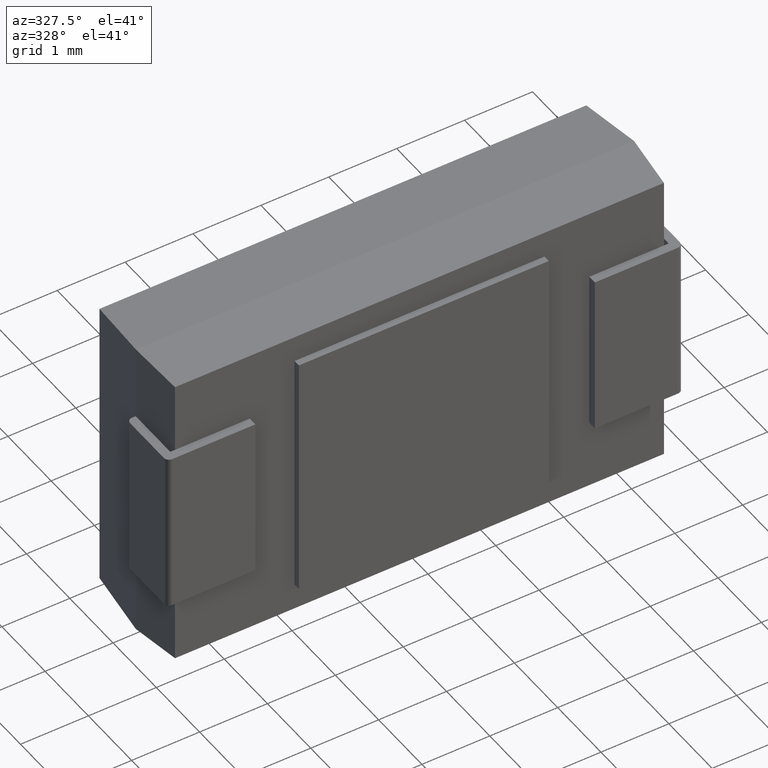
[diagram: clean part render]
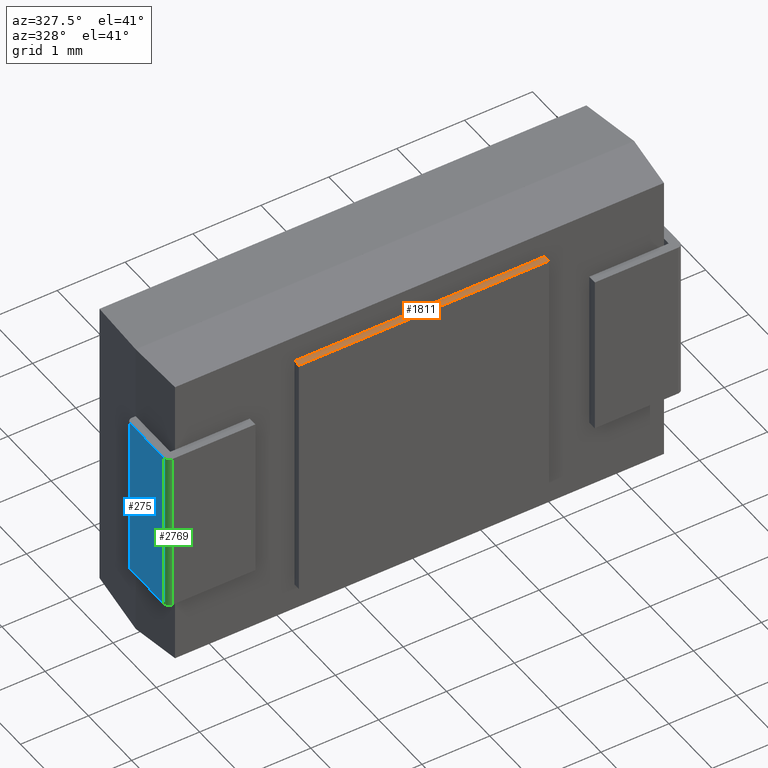
[diagram: same view with three faces highlighted in distinct colors, each labeled with its STEP entity id]
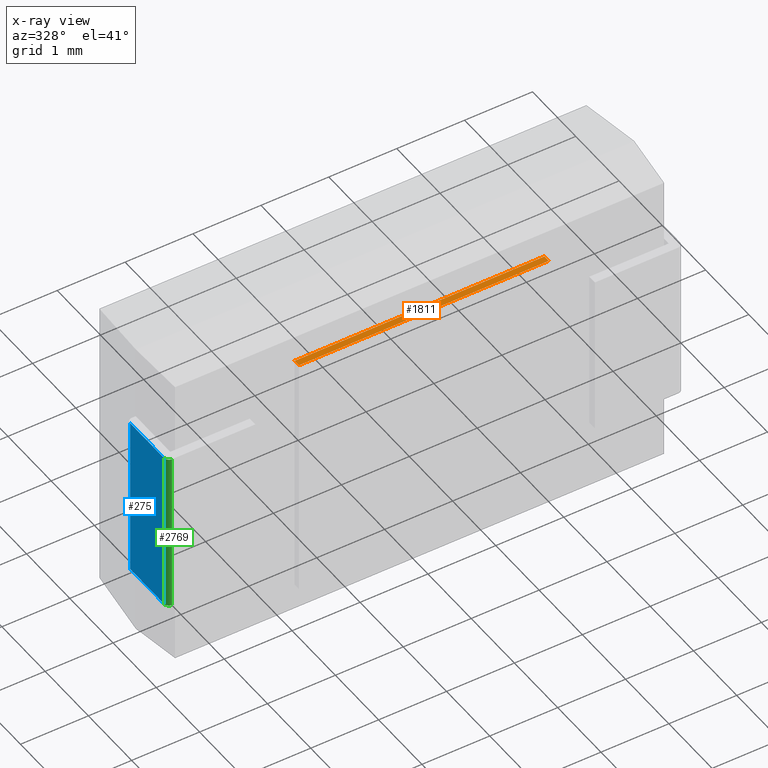
[diagram: x-ray of the same camera — body ghosted, the three highlighted faces saturated]
A machine part, auxiliary view with three faces highlighted in distinct colors.
The next image is the same camera in x-ray (body ghosted, the three faces saturated) — at least one of them is partly hidden behind the body in this view.
Their STEP definitions:

[orange] entity #1811 — the highlighted planar face has unit normal (0, 0, -1).
#88 = VERTEX_POINT ( 'NONE', #286 ) ;
#120 = DIRECTION ( 'NONE',  ( 0.0000000000000000000, 0.0000000000000000000, -1.000000000000000000 ) ) ;
#286 = CARTESIAN_POINT ( 'NONE',  ( 5.509999999999998900, 0.0000000000000000000, -0.4599999999999994600 ) ) ;
#306 = EDGE_CURVE ( 'NONE', #3464, #3472, #2361, .T. ) ;
#485 = EDGE_CURVE ( 'NONE', #3464, #88, #3803, .T. ) ;
#613 = VECTOR ( 'NONE', #2370, 1000.000000000000000 ) ;
#905 = LINE ( 'NONE', #1186, #613 ) ;
#1099 = ORIENTED_EDGE ( 'NONE', *, *, #1260, .F. ) ;
#1186 = CARTESIAN_POINT ( 'NONE',  ( 1.829999999999999600, -0.1000000000000000100, -0.4599999999999994600 ) ) ;
#1260 = EDGE_CURVE ( 'NONE', #3472, #1927, #905, .T. ) ;
#1331 = CARTESIAN_POINT ( 'NONE',  ( 1.829999999999999600, 0.0000000000000000000, -0.4599999999999994600 ) ) ;
#1476 = VECTOR ( 'NONE', #3398, 1000.000000000000000 ) ;
#1496 = DIRECTION ( 'NONE',  ( -0.0000000000000000000, 1.000000000000000000, -0.0000000000000000000 ) ) ;
#1526 = ORIENTED_EDGE ( 'NONE', *, *, #485, .T. ) ;
#1622 = CARTESIAN_POINT ( 'NONE',  ( 1.829999999999999600, -0.1000000000000000100, -0.4599999999999994600 ) ) ;
#1669 = VECTOR ( 'NONE', #1496, 1000.000000000000000 ) ;
#1747 = CARTESIAN_POINT ( 'NONE',  ( 5.509999999999998900, -0.1000000000000000100, -0.4599999999999994600 ) ) ;
#1764 = EDGE_CURVE ( 'NONE', #88, #1927, #2252, .T. ) ;
#1811 = ADVANCED_FACE ( 'NONE', ( #1983 ), #3739, .F. ) ;
#1927 = VERTEX_POINT ( 'NONE', #2564 ) ;
#1983 = FACE_OUTER_BOUND ( 'NONE', #3523, .T. ) ;
#1997 = VECTOR ( 'NONE', #3483, 1000.000000000000000 ) ;
#2252 = LINE ( 'NONE', #1331, #1476 ) ;
#2284 = CARTESIAN_POINT ( 'NONE',  ( 1.829999999999999600, -0.1000000000000000100, -0.4599999999999994600 ) ) ;
#2336 = CARTESIAN_POINT ( 'NONE',  ( 5.509999999999998900, -0.1000000000000000100, -0.4599999999999994600 ) ) ;
#2361 = LINE ( 'NONE', #2284, #1997 ) ;
#2362 = ORIENTED_EDGE ( 'NONE', *, *, #1764, .T. ) ;
#2370 = DIRECTION ( 'NONE',  ( -0.0000000000000000000, 1.000000000000000000, -0.0000000000000000000 ) ) ;
#2523 = DIRECTION ( 'NONE',  ( -1.000000000000000000, 0.0000000000000000000, -0.0000000000000000000 ) ) ;
#2564 = CARTESIAN_POINT ( 'NONE',  ( 1.829999999999999600, 0.0000000000000000000, -0.4599999999999994600 ) ) ;
#2633 = CARTESIAN_POINT ( 'NONE',  ( 1.829999999999999600, -0.1000000000000000100, -0.4599999999999994600 ) ) ;
#2695 = ORIENTED_EDGE ( 'NONE', *, *, #306, .F. ) ;
#3296 = AXIS2_PLACEMENT_3D ( 'NONE', #1622, #120, #2523 ) ;
#3398 = DIRECTION ( 'NONE',  ( -1.000000000000000000, -0.0000000000000000000, -0.0000000000000000000 ) ) ;
#3464 = VERTEX_POINT ( 'NONE', #2336 ) ;
#3472 = VERTEX_POINT ( 'NONE', #2633 ) ;
#3483 = DIRECTION ( 'NONE',  ( -1.000000000000000000, -0.0000000000000000000, -0.0000000000000000000 ) ) ;
#3523 = EDGE_LOOP ( 'NONE', ( #2362, #1099, #2695, #1526 ) ) ;
#3739 = PLANE ( 'NONE',  #3296 ) ;
#3803 = LINE ( 'NONE', #1747, #1669 ) ;

[blue] entity #275 — the highlighted planar face has unit normal (-1, 0, -0).
#19 = DIRECTION ( 'NONE',  ( 0.0000000000000000000, 1.000000000000000000, 0.0000000000000000000 ) ) ;
#275 = ADVANCED_FACE ( 'NONE', ( #445 ), #3193, .T. ) ;
#288 = CARTESIAN_POINT ( 'NONE',  ( 1.300000000000000000, 0.0000000000000000000, 0.0000000000000000000 ) ) ;
#363 = DIRECTION ( 'NONE',  ( 0.0000000000000000000, 0.0000000000000000000, 1.000000000000000000 ) ) ;
#414 = CARTESIAN_POINT ( 'NONE',  ( 1.300000000000000000, 0.0000000000000000000, -2.399999999999999900 ) ) ;
#445 = FACE_OUTER_BOUND ( 'NONE', #2627, .T. ) ;
#561 = EDGE_CURVE ( 'NONE', #3159, #2247, #2493, .T. ) ;
#625 = CARTESIAN_POINT ( 'NONE',  ( 1.300000000000000000, 0.8550000000000000900, -2.399999999999999900 ) ) ;
#640 = DIRECTION ( 'NONE',  ( 0.0000000000000000000, -0.0000000000000000000, -1.000000000000000000 ) ) ;
#753 = CARTESIAN_POINT ( 'NONE',  ( 1.300000000000000000, 0.8550000000000000900, -2.399999999999999900 ) ) ;
#852 = VECTOR ( 'NONE', #363, 1000.000000000000000 ) ;
#929 = VECTOR ( 'NONE', #640, 1000.000000000000000 ) ;
#1122 = DIRECTION ( 'NONE',  ( 0.0000000000000000000, 0.0000000000000000000, -1.000000000000000000 ) ) ;
#1143 = AXIS2_PLACEMENT_3D ( 'NONE', #3833, #2277, #1122 ) ;
#1175 = CARTESIAN_POINT ( 'NONE',  ( 1.300000000000000000, 0.8550000000000000900, 0.0000000000000000000 ) ) ;
#1237 = VERTEX_POINT ( 'NONE', #3239 ) ;
#1498 = ORIENTED_EDGE ( 'NONE', *, *, #561, .F. ) ;
#1686 = CARTESIAN_POINT ( 'NONE',  ( 1.300000000000000000, 0.07499999999999999700, 0.0000000000000000000 ) ) ;
#2109 = EDGE_CURVE ( 'NONE', #3125, #2247, #2110, .T. ) ;
#2110 = LINE ( 'NONE', #625, #852 ) ;
#2247 = VERTEX_POINT ( 'NONE', #1175 ) ;
#2277 = DIRECTION ( 'NONE',  ( 1.000000000000000000, 0.0000000000000000000, 0.0000000000000000000 ) ) ;
#2338 = ORIENTED_EDGE ( 'NONE', *, *, #2612, .T. ) ;
#2419 = LINE ( 'NONE', #3681, #929 ) ;
#2493 = LINE ( 'NONE', #288, #3886 ) ;
#2600 = ORIENTED_EDGE ( 'NONE', *, *, #2885, .T. ) ;
#2612 = EDGE_CURVE ( 'NONE', #1237, #3125, #3670, .T. ) ;
#2627 = EDGE_LOOP ( 'NONE', ( #1498, #2600, #2338, #2678 ) ) ;
#2678 = ORIENTED_EDGE ( 'NONE', *, *, #2109, .T. ) ;
#2719 = VECTOR ( 'NONE', #3163, 1000.000000000000000 ) ;
#2885 = EDGE_CURVE ( 'NONE', #3159, #1237, #2419, .T. ) ;
#3125 = VERTEX_POINT ( 'NONE', #753 ) ;
#3159 = VERTEX_POINT ( 'NONE', #1686 ) ;
#3163 = DIRECTION ( 'NONE',  ( 0.0000000000000000000, 1.000000000000000000, 0.0000000000000000000 ) ) ;
#3193 = PLANE ( 'NONE',  #1143 ) ;
#3239 = CARTESIAN_POINT ( 'NONE',  ( 1.300000000000000000, 0.07499999999999999700, -2.399999999999999900 ) ) ;
#3670 = LINE ( 'NONE', #414, #2719 ) ;
#3681 = CARTESIAN_POINT ( 'NONE',  ( 1.300000000000000000, 0.07499999999999999700, -2.399999999999999900 ) ) ;
#3833 = CARTESIAN_POINT ( 'NONE',  ( 1.300000000000000000, 0.0000000000000000000, -2.399999999999999900 ) ) ;
#3886 = VECTOR ( 'NONE', #19, 1000.000000000000000 ) ;

[green] entity #2769 — the highlighted cylindrical surface (edge-blend (fillet) strip) has radius 0.075 mm, axis along (0, -0, -1).
#52 = DIRECTION ( 'NONE',  ( -1.000000000000000000, 0.0000000000000000000, 0.0000000000000000000 ) ) ;
#500 = AXIS2_PLACEMENT_3D ( 'NONE', #2703, #3617, #1802 ) ;
#552 = CYLINDRICAL_SURFACE ( 'NONE', #500, 0.07499999999999998300 ) ;
#640 = DIRECTION ( 'NONE',  ( 0.0000000000000000000, -0.0000000000000000000, -1.000000000000000000 ) ) ;
#643 = CARTESIAN_POINT ( 'NONE',  ( 1.224999999999999900, 0.0000000000000000000, -2.399999999999999900 ) ) ;
#647 = CARTESIAN_POINT ( 'NONE',  ( 1.224999999999999900, 0.07499999999999999700, -2.399999999999999900 ) ) ;
#676 = EDGE_CURVE ( 'NONE', #1690, #822, #3022, .T. ) ;
#822 = VERTEX_POINT ( 'NONE', #1873 ) ;
#929 = VECTOR ( 'NONE', #640, 1000.000000000000000 ) ;
#1056 = VECTOR ( 'NONE', #3032, 1000.000000000000000 ) ;
#1237 = VERTEX_POINT ( 'NONE', #3239 ) ;
#1325 = ORIENTED_EDGE ( 'NONE', *, *, #676, .F. ) ;
#1332 = AXIS2_PLACEMENT_3D ( 'NONE', #647, #3671, #52 ) ;
#1686 = CARTESIAN_POINT ( 'NONE',  ( 1.300000000000000000, 0.07499999999999999700, 0.0000000000000000000 ) ) ;
#1690 = VERTEX_POINT ( 'NONE', #643 ) ;
#1802 = DIRECTION ( 'NONE',  ( 1.000000000000000000, 0.0000000000000000000, 0.0000000000000000000 ) ) ;
#1819 = EDGE_LOOP ( 'NONE', ( #2458, #2726, #3209, #1325 ) ) ;
#1863 = AXIS2_PLACEMENT_3D ( 'NONE', #2251, #2834, #3747 ) ;
#1873 = CARTESIAN_POINT ( 'NONE',  ( 1.224999999999999900, 0.0000000000000000000, 0.0000000000000000000 ) ) ;
#2251 = CARTESIAN_POINT ( 'NONE',  ( 1.224999999999999900, 0.07499999999999999700, 0.0000000000000000000 ) ) ;
#2383 = EDGE_CURVE ( 'NONE', #822, #3159, #2667, .T. ) ;
#2419 = LINE ( 'NONE', #3681, #929 ) ;
#2458 = ORIENTED_EDGE ( 'NONE', *, *, #3823, .F. ) ;
#2667 = CIRCLE ( 'NONE', #1863, 0.07499999999999998300 ) ;
#2703 = CARTESIAN_POINT ( 'NONE',  ( 1.224999999999999900, 0.07499999999999999700, -2.399999999999999900 ) ) ;
#2726 = ORIENTED_EDGE ( 'NONE', *, *, #2885, .F. ) ;
#2769 = ADVANCED_FACE ( 'NONE', ( #3820 ), #552, .T. ) ;
#2834 = DIRECTION ( 'NONE',  ( -0.0000000000000000000, -0.0000000000000000000, 1.000000000000000000 ) ) ;
#2885 = EDGE_CURVE ( 'NONE', #3159, #1237, #2419, .T. ) ;
#3022 = LINE ( 'NONE', #3328, #1056 ) ;
#3032 = DIRECTION ( 'NONE',  ( -0.0000000000000000000, 0.0000000000000000000, 1.000000000000000000 ) ) ;
#3159 = VERTEX_POINT ( 'NONE', #1686 ) ;
#3209 = ORIENTED_EDGE ( 'NONE', *, *, #2383, .F. ) ;
#3239 = CARTESIAN_POINT ( 'NONE',  ( 1.300000000000000000, 0.07499999999999999700, -2.399999999999999900 ) ) ;
#3328 = CARTESIAN_POINT ( 'NONE',  ( 1.224999999999999900, 0.0000000000000000000, -2.399999999999999900 ) ) ;
#3513 = CIRCLE ( 'NONE', #1332, 0.07499999999999998300 ) ;
#3617 = DIRECTION ( 'NONE',  ( -0.0000000000000000000, 0.0000000000000000000, 1.000000000000000000 ) ) ;
#3671 = DIRECTION ( 'NONE',  ( 0.0000000000000000000, 0.0000000000000000000, -1.000000000000000000 ) ) ;
#3681 = CARTESIAN_POINT ( 'NONE',  ( 1.300000000000000000, 0.07499999999999999700, -2.399999999999999900 ) ) ;
#3747 = DIRECTION ( 'NONE',  ( -1.000000000000000000, 0.0000000000000000000, 0.0000000000000000000 ) ) ;
#3820 = FACE_OUTER_BOUND ( 'NONE', #1819, .T. ) ;
#3823 = EDGE_CURVE ( 'NONE', #1237, #1690, #3513, .T. ) ;